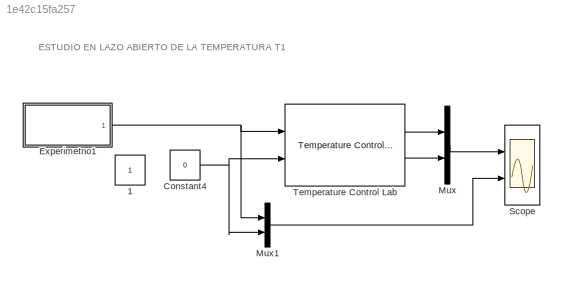
MODEL slx_1e42c15fa257
KIND model
CONFIG AbsTol = auto
CONFIG EnableMultiTasking = on
CONFIG FixedStep = auto
CONFIG MaxStep = auto
CONFIG MinStep = auto
CONFIG RelTol = 1e-3
CONFIG SampleTimeConstraint = Unconstrained
CONFIG Solver = VariableStepAuto
CONFIG SolverName = VariableStepAuto
CONFIG StartTime = 0.0
CONFIG StopTime = 4500
BLOCK [Constant] 1
  IOType = siggen
BLOCK [Constant] Constant4
  Value = 0
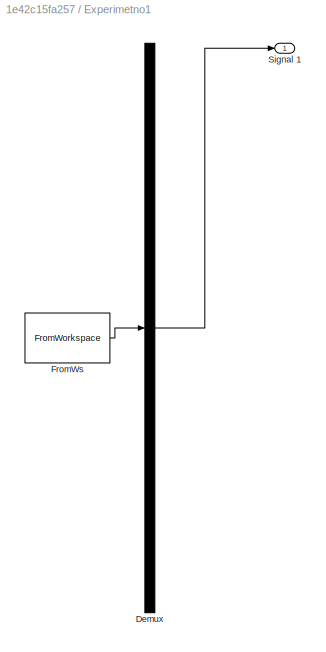
BLOCK [SubSystem] Experimetno1
  ClipboardFcn = sigbuilder_block('clipboard');
  CloseFcn = sigbuilder_block('close');
  ContinueFcn = sigbuilder_block('continue');
  CopyFcn = sigbuilder_block('copy');
  DeleteFcn = sigbuilder_block('delete');
  LoadFcn = sigbuilder_block('load');
  MaskHideContents = on
  ModelCloseFcn = sigbuilder_block('modelClose');
  NameChangeFcn = sigbuilder_block('namechange');
  OpenFcn = sigbuilder_block('open',[595.8 224.4 550.8 361.8 ]);
  PauseFcn = sigbuilder_block('pause');
  Ports = [0, 1]
  PreSaveFcn = sigbuilder_block('preSave');
  RequestExecContextInheritance = off
  StartFcn = sigbuilder_block('start');
  StopFcn = sigbuilder_block('stop');
  Tag = STV Subsys
BLOCK [Demux] Experimetno1/Demux
  Outputs = 1
  Ports = [1, 1]
  Tag = STV Demux
BLOCK [FromWorkspace] Experimetno1/FromWs
  SampleTime = 0
  Tag = STV FromWs
  VariableName = tuvar
  ZeroCross = on
BLOCK [Outport] Experimetno1/Signal 1
  IconDisplay = Port number
  Tag = STV Outport
BLOCK [Mux] Mux
  DisplayOption = bar
  Inputs = 2
  Ports = [2, 1]
BLOCK [Mux] Mux1
  DisplayOption = bar
  Inputs = 2
  Ports = [2, 1]
BLOCK [Scope] Scope
  Floating = off
  NumInputPorts = 2
  Ports = [2]
  ScopeSpecificationString = Simulink.scopes.TimeScopeBlockCfg('CurrentConfiguration', extmgr.ConfigurationSet(extmgr.Configuration('Core','General UI',true),extmgr.Configuration('Core','Source UI',true),extmgr.Configuration('Sources','WiredSimulink',true,'DataLogging',true,'DataLoggingVariableName','Datos','DataLoggingSaveFormat','StructureWithTime'),extmgr.Configuration('Visuals','Time Domain',true,'SerializedDisplays',{str...<+2533ch>
BLOCK [Reference] Temperature Control Lab  REF=TemperatureLabLibrary/Temperature Control Lab
  Ports = [2, 2]
  SourceBlock = TemperatureLabLibrary/Temperature Control Lab
  SourceProductName = TemperatureLabLibrary
  SourceType = SISTEMA DE CONTROL DE TEMPERATURA
ANNOTATION (root): ESTUDIO EN LAZO ABIERTO DE LA TEMPERATURA T1
NET Constant4:1 -> Mux1:2, Temperature Control Lab:2
NET Experimetno1:1 -> Mux1:1, Temperature Control Lab:1
LINE Mux1:1 -> Scope:2
LINE Mux:1 -> Scope:1
LINE Temperature Control Lab:1 -> Mux:1
LINE Temperature Control Lab:2 -> Mux:2
note: NET lines group one-source signal fan-out (src -> all destinations, sorted); 1:1 wires keep LINE
